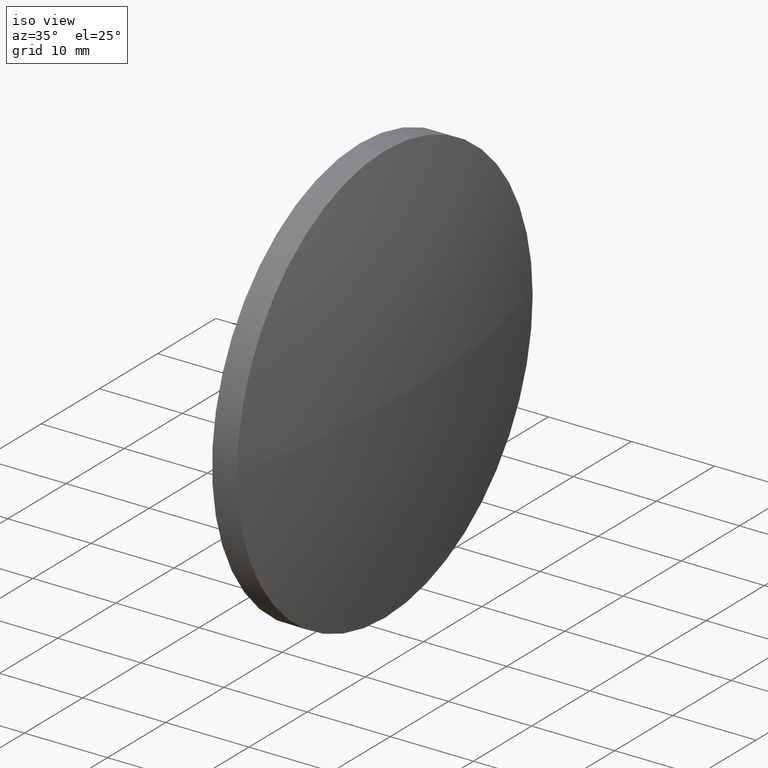
[diagram: clean part render]
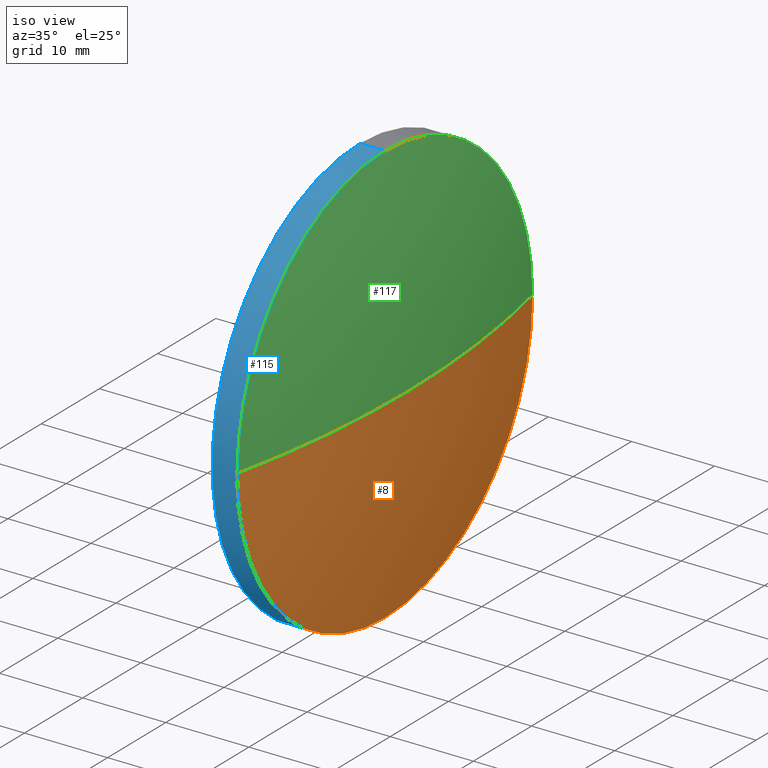
[diagram: same view with three faces highlighted in distinct colors, each labeled with its STEP entity id]
A machine part, iso view with three faces highlighted in distinct colors.
Their STEP definitions:

[orange] entity #8 — the highlighted spherical surface has radius 116.607 mm.
#7 = EDGE_LOOP ( 'NONE', ( #86, #172, #168, #55 ) ) ;
#8 = ADVANCED_FACE ( 'NONE', ( #96 ), #65, .T. ) ;
#14 = DIRECTION ( 'NONE',  ( 0.0000000000000000000, 0.0000000000000000000, 1.000000000000000000 ) ) ;
#24 = AXIS2_PLACEMENT_3D ( 'NONE', #150, #67, #122 ) ;
#25 = CARTESIAN_POINT ( 'NONE',  ( 121.2136772220999200, 130.4671098528243900, 0.0000000000000000000 ) ) ;
#28 = DIRECTION ( 'NONE',  ( -1.000000000000000000, -0.0000000000000000000, -0.0000000000000000000 ) ) ;
#30 = CARTESIAN_POINT ( 'NONE',  ( 235.0208200792423800, 130.4671098528243900, 0.0000000000000000000 ) ) ;
#39 = DIRECTION ( 'NONE',  ( 0.0000000000000000000, 1.000000000000000000, 0.0000000000000000000 ) ) ;
#41 = DIRECTION ( 'NONE',  ( 0.0000000000000000000, 0.0000000000000000000, 1.000000000000000000 ) ) ;
#42 = EDGE_CURVE ( 'NONE', #101, #144, #129, .T. ) ;
#50 = DIRECTION ( 'NONE',  ( 0.0000000000000000000, 1.000000000000000000, 1.224646799147353000E-016 ) ) ;
#55 = ORIENTED_EDGE ( 'NONE', *, *, #114, .F. ) ;
#58 = VERTEX_POINT ( 'NONE', #186 ) ;
#59 = AXIS2_PLACEMENT_3D ( 'NONE', #30, #28, #41 ) ;
#62 = CARTESIAN_POINT ( 'NONE',  ( 121.2136772220999200, 130.4671098528243900, 0.0000000000000000000 ) ) ;
#63 = AXIS2_PLACEMENT_3D ( 'NONE', #64, #90, #14 ) ;
#64 = CARTESIAN_POINT ( 'NONE',  ( 235.0208200792423800, 130.4671098528243900, 0.0000000000000000000 ) ) ;
#65 = SPHERICAL_SURFACE ( 'NONE', #77, 116.6071428571424600 ) ;
#67 = DIRECTION ( 'NONE',  ( -0.0000000000000000000, 0.0000000000000000000, 1.000000000000000000 ) ) ;
#72 = AXIS2_PLACEMENT_3D ( 'NONE', #62, #180, #50 ) ;
#75 = CIRCLE ( 'NONE', #63, 25.40000000000000600 ) ;
#77 = AXIS2_PLACEMENT_3D ( 'NONE', #25, #131, #39 ) ;
#81 = CARTESIAN_POINT ( 'NONE',  ( 237.8208200792423700, 130.4671098528243900, 0.0000000000000000000 ) ) ;
#86 = ORIENTED_EDGE ( 'NONE', *, *, #116, .F. ) ;
#90 = DIRECTION ( 'NONE',  ( -1.000000000000000000, -0.0000000000000000000, -0.0000000000000000000 ) ) ;
#91 = CIRCLE ( 'NONE', #72, 116.6071428571424600 ) ;
#96 = FACE_OUTER_BOUND ( 'NONE', #7, .T. ) ;
#101 = VERTEX_POINT ( 'NONE', #140 ) ;
#114 = EDGE_CURVE ( 'NONE', #58, #101, #75, .T. ) ;
#116 = EDGE_CURVE ( 'NONE', #139, #58, #145, .T. ) ;
#122 = DIRECTION ( 'NONE',  ( 1.000000000000000000, 0.0000000000000000000, 0.0000000000000000000 ) ) ;
#129 = CIRCLE ( 'NONE', #59, 25.40000000000000600 ) ;
#131 = DIRECTION ( 'NONE',  ( -0.0000000000000000000, 0.0000000000000000000, -1.000000000000000000 ) ) ;
#139 = VERTEX_POINT ( 'NONE', #81 ) ;
#140 = CARTESIAN_POINT ( 'NONE',  ( 235.0208200792423800, 130.4671098528243900, -25.40000000000000600 ) ) ;
#144 = VERTEX_POINT ( 'NONE', #160 ) ;
#145 = CIRCLE ( 'NONE', #24, 116.6071428571424600 ) ;
#150 = CARTESIAN_POINT ( 'NONE',  ( 121.2136772220999200, 130.4671098528243900, 0.0000000000000000000 ) ) ;
#160 = CARTESIAN_POINT ( 'NONE',  ( 235.0208200792423800, 105.0671098528244200, -3.110602869834274100E-015 ) ) ;
#168 = ORIENTED_EDGE ( 'NONE', *, *, #42, .F. ) ;
#172 = ORIENTED_EDGE ( 'NONE', *, *, #182, .T. ) ;
#180 = DIRECTION ( 'NONE',  ( 0.0000000000000000000, 1.224646799147353200E-016, -1.000000000000000000 ) ) ;
#182 = EDGE_CURVE ( 'NONE', #139, #144, #91, .T. ) ;
#186 = CARTESIAN_POINT ( 'NONE',  ( 235.0208200792423800, 155.8671098528243700, 0.0000000000000000000 ) ) ;

[blue] entity #115 — the highlighted cylindrical surface (partial cylindrical patch) has radius 25.4 mm, axis along (-1, -0, -0).
#4 = DIRECTION ( 'NONE',  ( -1.000000000000000000, -0.0000000000000000000, -0.0000000000000000000 ) ) ;
#5 = CARTESIAN_POINT ( 'NONE',  ( 235.0208200792423800, 130.4671098528243900, 0.0000000000000000000 ) ) ;
#6 = DIRECTION ( 'NONE',  ( -1.000000000000000000, -0.0000000000000000000, -0.0000000000000000000 ) ) ;
#11 = AXIS2_PLACEMENT_3D ( 'NONE', #5, #113, #161 ) ;
#28 = DIRECTION ( 'NONE',  ( -1.000000000000000000, -0.0000000000000000000, -0.0000000000000000000 ) ) ;
#29 = ORIENTED_EDGE ( 'NONE', *, *, #42, .T. ) ;
#30 = CARTESIAN_POINT ( 'NONE',  ( 235.0208200792423800, 130.4671098528243900, 0.0000000000000000000 ) ) ;
#32 = DIRECTION ( 'NONE',  ( 0.0000000000000000000, 0.0000000000000000000, 1.000000000000000000 ) ) ;
#37 = CIRCLE ( 'NONE', #49, 25.40000000000000600 ) ;
#38 = CIRCLE ( 'NONE', #11, 25.40000000000000600 ) ;
#41 = DIRECTION ( 'NONE',  ( 0.0000000000000000000, 0.0000000000000000000, 1.000000000000000000 ) ) ;
#42 = EDGE_CURVE ( 'NONE', #101, #144, #129, .T. ) ;
#43 = CARTESIAN_POINT ( 'NONE',  ( 220.3307464569769000, 130.4671098528243900, 0.0000000000000000000 ) ) ;
#45 = CARTESIAN_POINT ( 'NONE',  ( 220.3307464569769000, 130.4671098528243900, 25.40000000000000600 ) ) ;
#48 = LINE ( 'NONE', #78, #130 ) ;
#49 = AXIS2_PLACEMENT_3D ( 'NONE', #79, #4, #32 ) ;
#57 = EDGE_LOOP ( 'NONE', ( #183, #29, #147, #176, #112 ) ) ;
#59 = AXIS2_PLACEMENT_3D ( 'NONE', #30, #28, #41 ) ;
#60 = VECTOR ( 'NONE', #121, 1000.000000000000000 ) ;
#66 = VERTEX_POINT ( 'NONE', #173 ) ;
#70 = EDGE_CURVE ( 'NONE', #144, #66, #38, .T. ) ;
#76 = CYLINDRICAL_SURFACE ( 'NONE', #85, 25.40000000000000600 ) ;
#78 = CARTESIAN_POINT ( 'NONE',  ( 220.3307464569769000, 130.4671098528243900, -25.40000000000000600 ) ) ;
#79 = CARTESIAN_POINT ( 'NONE',  ( 232.0208200792423800, 130.4671098528243900, 0.0000000000000000000 ) ) ;
#85 = AXIS2_PLACEMENT_3D ( 'NONE', #43, #6, #148 ) ;
#101 = VERTEX_POINT ( 'NONE', #140 ) ;
#103 = VERTEX_POINT ( 'NONE', #138 ) ;
#107 = DIRECTION ( 'NONE',  ( -1.000000000000000000, -0.0000000000000000000, -0.0000000000000000000 ) ) ;
#112 = ORIENTED_EDGE ( 'NONE', *, *, #170, .F. ) ;
#113 = DIRECTION ( 'NONE',  ( -1.000000000000000000, -0.0000000000000000000, -0.0000000000000000000 ) ) ;
#115 = ADVANCED_FACE ( 'NONE', ( #157 ), #76, .T. ) ;
#121 = DIRECTION ( 'NONE',  ( -1.000000000000000000, -0.0000000000000000000, -0.0000000000000000000 ) ) ;
#129 = CIRCLE ( 'NONE', #59, 25.40000000000000600 ) ;
#130 = VECTOR ( 'NONE', #107, 1000.000000000000000 ) ;
#132 = EDGE_CURVE ( 'NONE', #101, #103, #48, .T. ) ;
#136 = CARTESIAN_POINT ( 'NONE',  ( 232.0208200792423800, 130.4671098528243900, 25.40000000000000600 ) ) ;
#138 = CARTESIAN_POINT ( 'NONE',  ( 232.0208200792423800, 130.4671098528243900, -25.40000000000000600 ) ) ;
#140 = CARTESIAN_POINT ( 'NONE',  ( 235.0208200792423800, 130.4671098528243900, -25.40000000000000600 ) ) ;
#142 = EDGE_CURVE ( 'NONE', #66, #152, #179, .T. ) ;
#144 = VERTEX_POINT ( 'NONE', #160 ) ;
#147 = ORIENTED_EDGE ( 'NONE', *, *, #70, .T. ) ;
#148 = DIRECTION ( 'NONE',  ( 0.0000000000000000000, 0.0000000000000000000, 1.000000000000000000 ) ) ;
#152 = VERTEX_POINT ( 'NONE', #136 ) ;
#157 = FACE_OUTER_BOUND ( 'NONE', #57, .T. ) ;
#160 = CARTESIAN_POINT ( 'NONE',  ( 235.0208200792423800, 105.0671098528244200, -3.110602869834274100E-015 ) ) ;
#161 = DIRECTION ( 'NONE',  ( 0.0000000000000000000, 0.0000000000000000000, 1.000000000000000000 ) ) ;
#170 = EDGE_CURVE ( 'NONE', #103, #152, #37, .T. ) ;
#173 = CARTESIAN_POINT ( 'NONE',  ( 235.0208200792423800, 130.4671098528243900, 25.40000000000000600 ) ) ;
#176 = ORIENTED_EDGE ( 'NONE', *, *, #142, .T. ) ;
#179 = LINE ( 'NONE', #45, #60 ) ;
#183 = ORIENTED_EDGE ( 'NONE', *, *, #132, .F. ) ;

[green] entity #117 — the highlighted spherical surface has radius 116.607 mm.
#1 = CIRCLE ( 'NONE', #3, 25.40000000000000600 ) ;
#3 = AXIS2_PLACEMENT_3D ( 'NONE', #109, #163, #108 ) ;
#5 = CARTESIAN_POINT ( 'NONE',  ( 235.0208200792423800, 130.4671098528243900, 0.0000000000000000000 ) ) ;
#11 = AXIS2_PLACEMENT_3D ( 'NONE', #5, #113, #161 ) ;
#19 = ORIENTED_EDGE ( 'NONE', *, *, #53, .F. ) ;
#23 = ORIENTED_EDGE ( 'NONE', *, *, #182, .F. ) ;
#24 = AXIS2_PLACEMENT_3D ( 'NONE', #150, #67, #122 ) ;
#38 = CIRCLE ( 'NONE', #11, 25.40000000000000600 ) ;
#50 = DIRECTION ( 'NONE',  ( 0.0000000000000000000, 1.000000000000000000, 1.224646799147353000E-016 ) ) ;
#51 = FACE_OUTER_BOUND ( 'NONE', #134, .T. ) ;
#53 = EDGE_CURVE ( 'NONE', #66, #58, #1, .T. ) ;
#58 = VERTEX_POINT ( 'NONE', #186 ) ;
#61 = DIRECTION ( 'NONE',  ( 0.0000000000000000000, 1.000000000000000000, 0.0000000000000000000 ) ) ;
#62 = CARTESIAN_POINT ( 'NONE',  ( 121.2136772220999200, 130.4671098528243900, 0.0000000000000000000 ) ) ;
#66 = VERTEX_POINT ( 'NONE', #173 ) ;
#67 = DIRECTION ( 'NONE',  ( -0.0000000000000000000, 0.0000000000000000000, 1.000000000000000000 ) ) ;
#70 = EDGE_CURVE ( 'NONE', #144, #66, #38, .T. ) ;
#72 = AXIS2_PLACEMENT_3D ( 'NONE', #62, #180, #50 ) ;
#81 = CARTESIAN_POINT ( 'NONE',  ( 237.8208200792423700, 130.4671098528243900, 0.0000000000000000000 ) ) ;
#82 = ORIENTED_EDGE ( 'NONE', *, *, #116, .T. ) ;
#91 = CIRCLE ( 'NONE', #72, 116.6071428571424600 ) ;
#92 = CARTESIAN_POINT ( 'NONE',  ( 121.2136772220999200, 130.4671098528243900, 0.0000000000000000000 ) ) ;
#108 = DIRECTION ( 'NONE',  ( 0.0000000000000000000, 0.0000000000000000000, 1.000000000000000000 ) ) ;
#109 = CARTESIAN_POINT ( 'NONE',  ( 235.0208200792423800, 130.4671098528243900, 0.0000000000000000000 ) ) ;
#113 = DIRECTION ( 'NONE',  ( -1.000000000000000000, -0.0000000000000000000, -0.0000000000000000000 ) ) ;
#116 = EDGE_CURVE ( 'NONE', #139, #58, #145, .T. ) ;
#117 = ADVANCED_FACE ( 'NONE', ( #51 ), #185, .T. ) ;
#122 = DIRECTION ( 'NONE',  ( 1.000000000000000000, 0.0000000000000000000, 0.0000000000000000000 ) ) ;
#123 = DIRECTION ( 'NONE',  ( -0.0000000000000000000, 0.0000000000000000000, -1.000000000000000000 ) ) ;
#134 = EDGE_LOOP ( 'NONE', ( #23, #82, #19, #156 ) ) ;
#139 = VERTEX_POINT ( 'NONE', #81 ) ;
#144 = VERTEX_POINT ( 'NONE', #160 ) ;
#145 = CIRCLE ( 'NONE', #24, 116.6071428571424600 ) ;
#150 = CARTESIAN_POINT ( 'NONE',  ( 121.2136772220999200, 130.4671098528243900, 0.0000000000000000000 ) ) ;
#151 = AXIS2_PLACEMENT_3D ( 'NONE', #92, #123, #61 ) ;
#156 = ORIENTED_EDGE ( 'NONE', *, *, #70, .F. ) ;
#160 = CARTESIAN_POINT ( 'NONE',  ( 235.0208200792423800, 105.0671098528244200, -3.110602869834274100E-015 ) ) ;
#161 = DIRECTION ( 'NONE',  ( 0.0000000000000000000, 0.0000000000000000000, 1.000000000000000000 ) ) ;
#163 = DIRECTION ( 'NONE',  ( -1.000000000000000000, -0.0000000000000000000, -0.0000000000000000000 ) ) ;
#173 = CARTESIAN_POINT ( 'NONE',  ( 235.0208200792423800, 130.4671098528243900, 25.40000000000000600 ) ) ;
#180 = DIRECTION ( 'NONE',  ( 0.0000000000000000000, 1.224646799147353200E-016, -1.000000000000000000 ) ) ;
#182 = EDGE_CURVE ( 'NONE', #139, #144, #91, .T. ) ;
#185 = SPHERICAL_SURFACE ( 'NONE', #151, 116.6071428571424600 ) ;
#186 = CARTESIAN_POINT ( 'NONE',  ( 235.0208200792423800, 155.8671098528243700, 0.0000000000000000000 ) ) ;